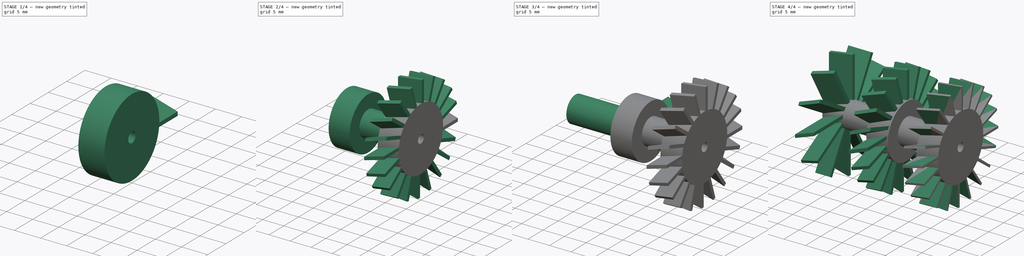
[diagram: build sequence overview — one tinted view per stage of 4, left to right]
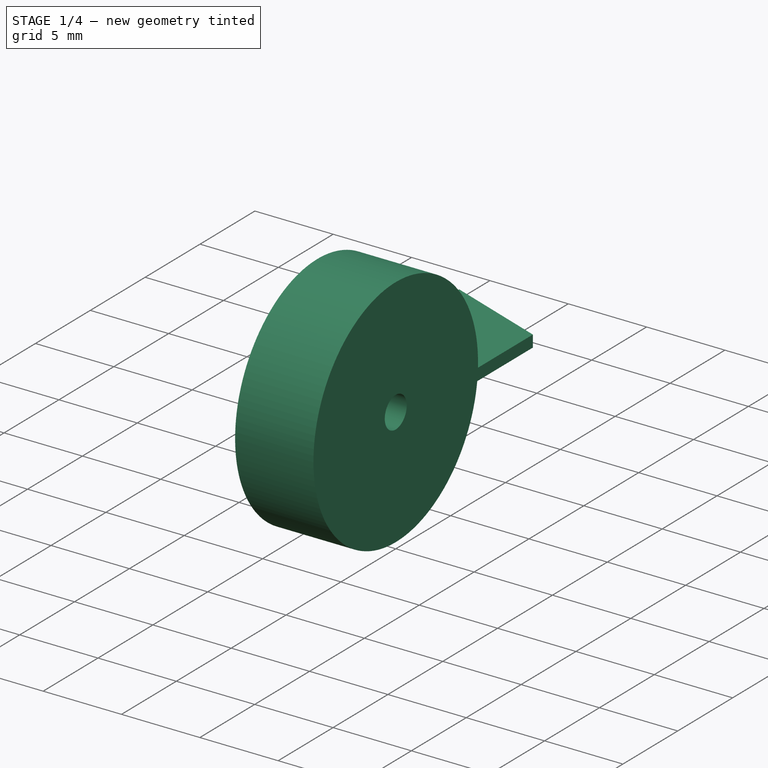
[diagram: stage 1 of 4 — iso view after this stage's code; geometry added in this stage tinted green]
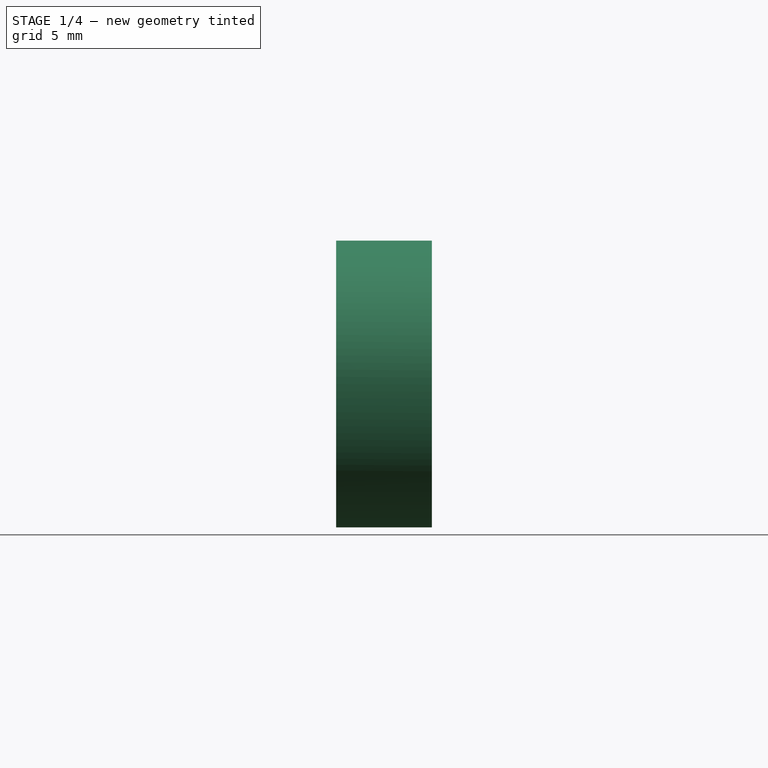
[diagram: stage 1 of 4 — front view after this stage's code; geometry added in this stage tinted green]
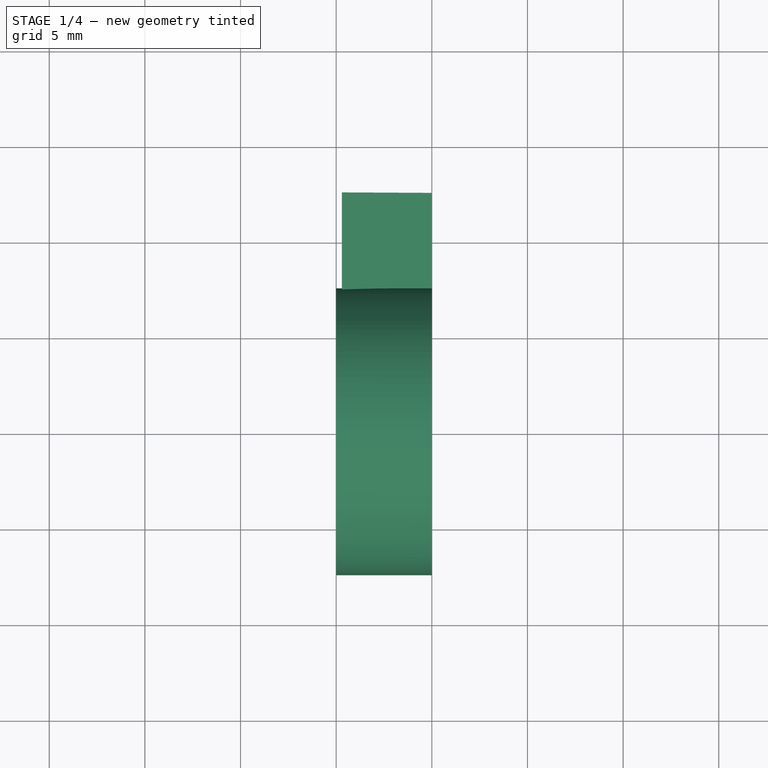
[diagram: stage 1 of 4 — top view after this stage's code; geometry added in this stage tinted green]
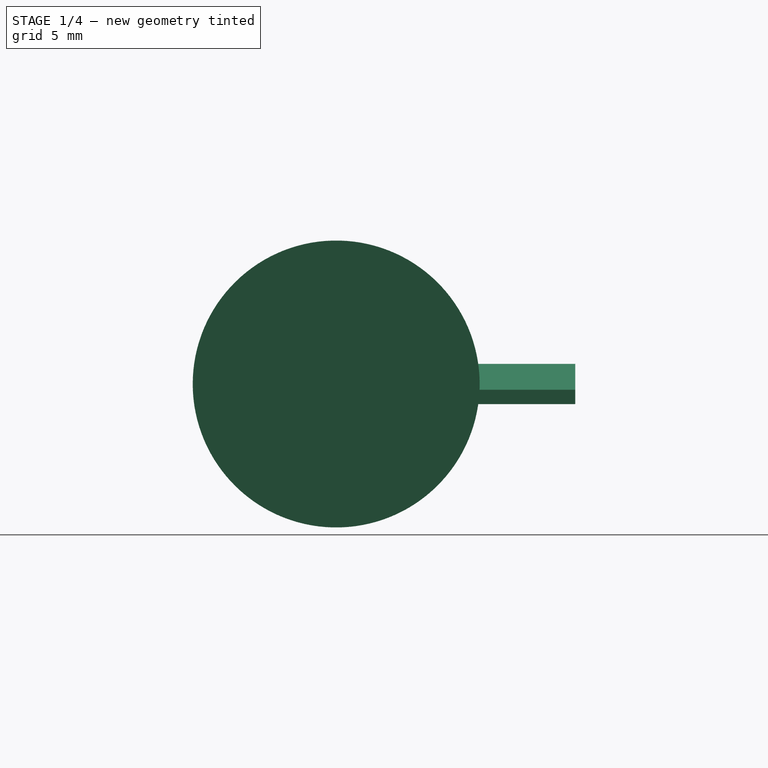
[diagram: stage 1 of 4 — right view after this stage's code; geometry added in this stage tinted green]
FCSTD DOCUMENT  (FreeCAD 0.19R24276 (Git))
Label: thicker_blades
License: All rights reserved
LicenseURL: http://en.wikipedia.org/wiki/All_rights_reserved
objects: Sketcher::SketchObject×8, PartDesign::Pad×7, PartDesign::Plane×3, PartDesign::PolarPattern×3, PartDesign::Pocket×1, PartDesign::Body×1
note: 31 computed .brp shape members not serialized (recipe doc carries the construction recipe); baked Part::Feature solids carry a one-line shape summary decoded from their .brp

FEATURE [Sketcher::SketchObject] Sketch
  FullyConstrained = true
  MapMode = 5
  Placement = pos=(0,0,0) rot=(0.57735,0.57735,0.57735;2.0944rad)
  Support = -> [YZ_Plane]
  sketch-geometry (1):
    g0: Circle CenterX=0 CenterY=0 CenterZ=0 NormalX=0 NormalY=0 NormalZ=1 AngleXU=0 Radius=7.5
  constraints (2):
    c: Coincident(g0,g-1)
    c: Diameter(g0) = 15
FEATURE [PartDesign::Pad] Pad
  Direction = (1,1,1)
  Length = 5
  Length2 = 100
  Placement = pos=(0,0,0) rot=(0.57735,0.57735,0.57735;2.0944rad)
  Profile = -> Sketch
  Type = 0
FEATURE [Sketcher::SketchObject] Sketch001
  FullyConstrained = false
  MapMode = 5
  Placement = pos=(5,-1.1e-15,1.1e-15) rot=(0.57735,0.57735,0.57735;2.0944rad)
  Support = -> [Pad]
  sketch-geometry (1):
    g0: Circle CenterX=0 CenterY=0 CenterZ=0 NormalX=0 NormalY=0 NormalZ=1 AngleXU=0 Radius=1
  constraints (1):
    c: Diameter(g0) = 2
FEATURE [PartDesign::Pocket] Pocket
  BaseFeature = -> Pad
  Length = 3
  Length2 = 100
  Placement = pos=(0,0,0) rot=(0.57735,0.57735,0.57735;2.0944rad)
  Profile = -> Sketch001
  Type = 0
FEATURE [PartDesign::Plane] DatumPlane
  Length = 60
  MapMode = 6
  Placement = pos=(0,7.5,-3.3e-15) rot=(0.57735,0.57735,0.57735;4.18879rad)
  ResizeMode = 0
  Support = -> [Pocket]
  Width = 60
FEATURE [Sketcher::SketchObject] Sketch002
  FullyConstrained = true
  MapMode = 5
  Placement = pos=(0,7.5,-3.3e-15) rot=(0.57735,0.57735,0.57735;4.18879rad)
  Support = -> [DatumPlane]
  sketch-geometry (4):
    g0: LineSegment StartX=1.05 StartY=0.3 StartZ=0 EndX=-0.3 EndY=5 EndZ=0
    g1: LineSegment StartX=-0.3 StartY=5 StartZ=0 EndX=-1.05 EndY=5 EndZ=0
    g2: LineSegment StartX=1.05 StartY=0.3 StartZ=0 EndX=0.3 EndY=0.3 EndZ=0
    g3: LineSegment StartX=-1.05 StartY=5 StartZ=0 EndX=0.3 EndY=0.3 EndZ=0
  constraints (12):
    c: Coincident(g1,g0)
    c: Coincident(g2,g0)
    c: Coincident(g3,g1)
    c: Coincident(g3,g2)
    c: Parallel(g0,g3)
    c: Equal(g2,g1)
    c: Horizontal(g1)
    c: DistanceX(g0,g-1) = 0.3
    c: DistanceX(g-1,g2) = 0.3
    c: DistanceX(g1,g0) = 0.75
    c: DistanceY(g-1,g2) = 0.3
    c: DistanceY(g-1,g0) = 5
FEATURE [PartDesign::Pad] Pad001
  BaseFeature = -> Pocket
  Direction = (1,1,1)
  Length = 10
  Length2 = 100
  Midplane = true
  Placement = pos=(0,0,0) rot=(0.57735,0.57735,0.57735;2.0944rad)
  Profile = -> Sketch002
  Type = 0
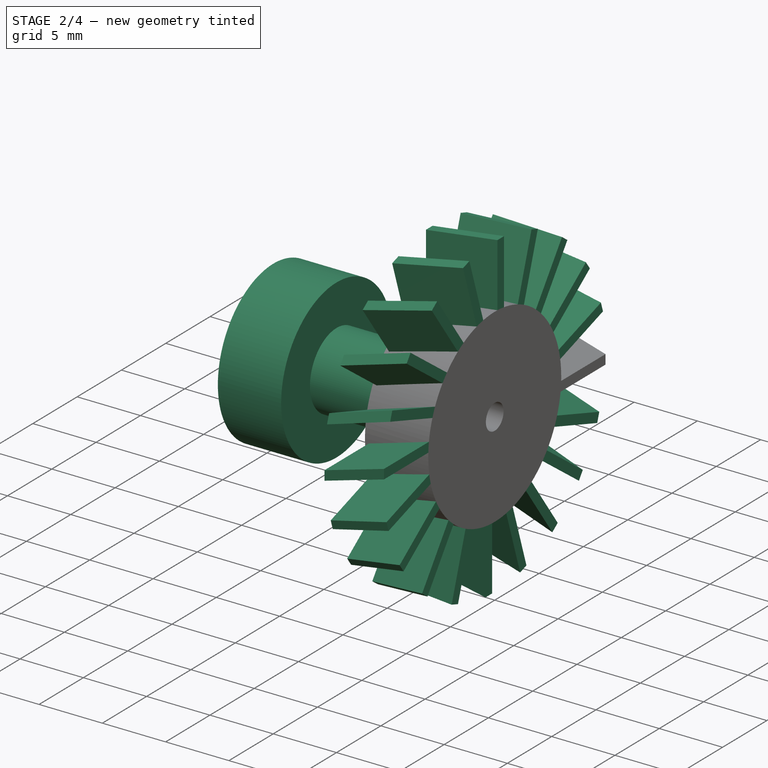
[diagram: stage 2 of 4 — iso view after this stage's code; geometry added in this stage tinted green]
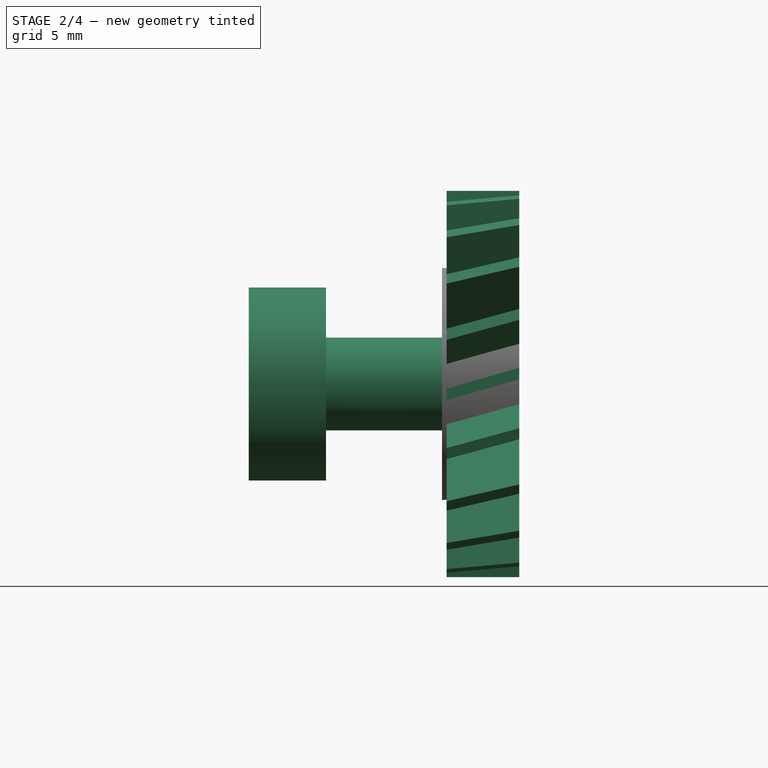
[diagram: stage 2 of 4 — front view after this stage's code; geometry added in this stage tinted green]
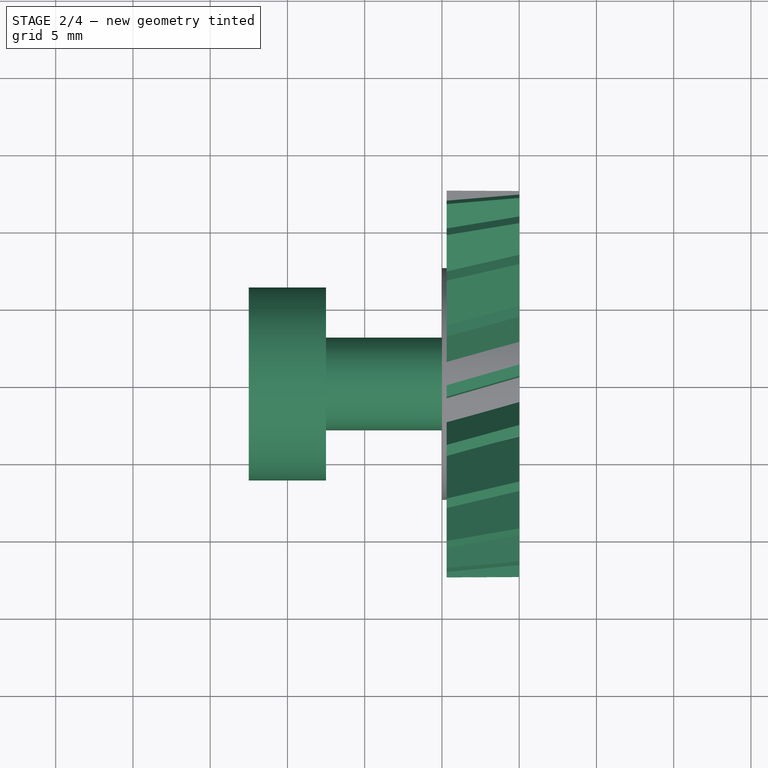
[diagram: stage 2 of 4 — top view after this stage's code; geometry added in this stage tinted green]
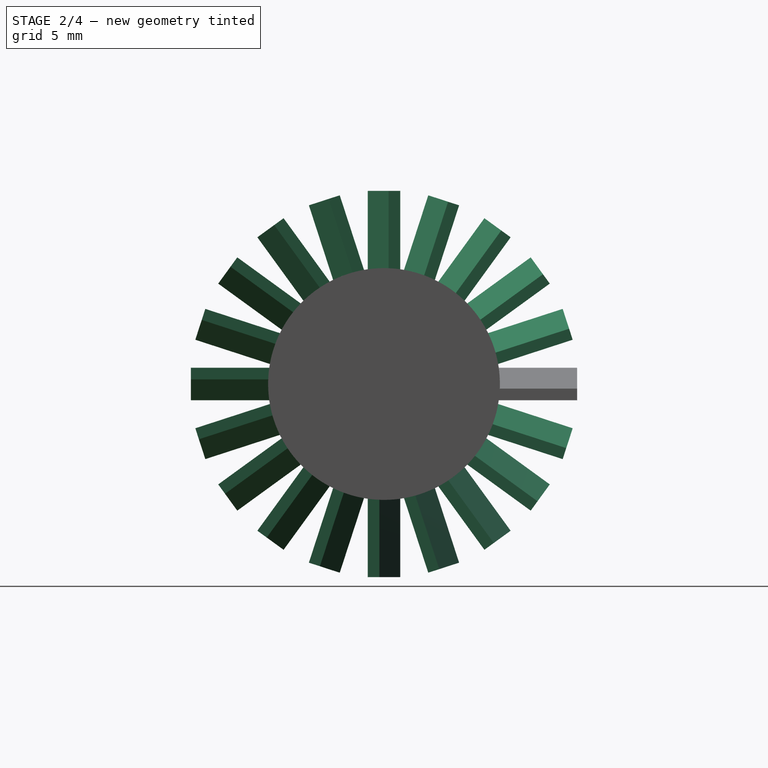
[diagram: stage 2 of 4 — right view after this stage's code; geometry added in this stage tinted green]
FEATURE [PartDesign::PolarPattern] PolarPattern
  Angle = 360
  Axis = -> X_Axis
  BaseFeature = -> Pad001
  Occurrences = 20
  Originals = -> [Pad001]
  Placement = pos=(0,0,0) rot=(0.57735,0.57735,0.57735;2.0944rad)
FEATURE [Sketcher::SketchObject] Sketch003
  FullyConstrained = true
  MapMode = 5
  Placement = pos=(0,0,0) rot=(0.57735,0.57735,-0.57735;4.18879rad)
  Support = -> [PolarPattern]
  sketch-geometry (1):
    g0: Circle CenterX=0 CenterY=0 CenterZ=0 NormalX=0 NormalY=0 NormalZ=1 AngleXU=0 Radius=3
  constraints (2):
    c: Coincident(g0,g-1)
    c: Radius(g0) = 3
FEATURE [PartDesign::Pad] Pad002
  BaseFeature = -> PolarPattern
  Direction = (1,1,1)
  Length = 7.5
  Length2 = 100
  Placement = pos=(0,0,0) rot=(0.57735,0.57735,0.57735;2.0944rad)
  Profile = -> Sketch003
  Type = 0
FEATURE [Sketcher::SketchObject] Sketch004
  FullyConstrained = true
  MapMode = 5
  Placement = pos=(-7.5,1.7e-15,-2.1e-15) rot=(0.57735,0.57735,-0.57735;4.18879rad)
  Support = -> [Pad002]
  sketch-geometry (1):
    g0: Circle CenterX=0 CenterY=0 CenterZ=0 NormalX=0 NormalY=0 NormalZ=1 AngleXU=0 Radius=6.25
  constraints (2):
    c: Coincident(g0,g-1)
    c: Radius(g0) = 6.25
FEATURE [PartDesign::Pad] Pad003
  BaseFeature = -> Pad002
  Direction = (1,1,1)
  Length = 5
  Length2 = 100
  Placement = pos=(0,0,0) rot=(0.57735,0.57735,0.57735;2.0944rad)
  Profile = -> Sketch004
  Type = 0
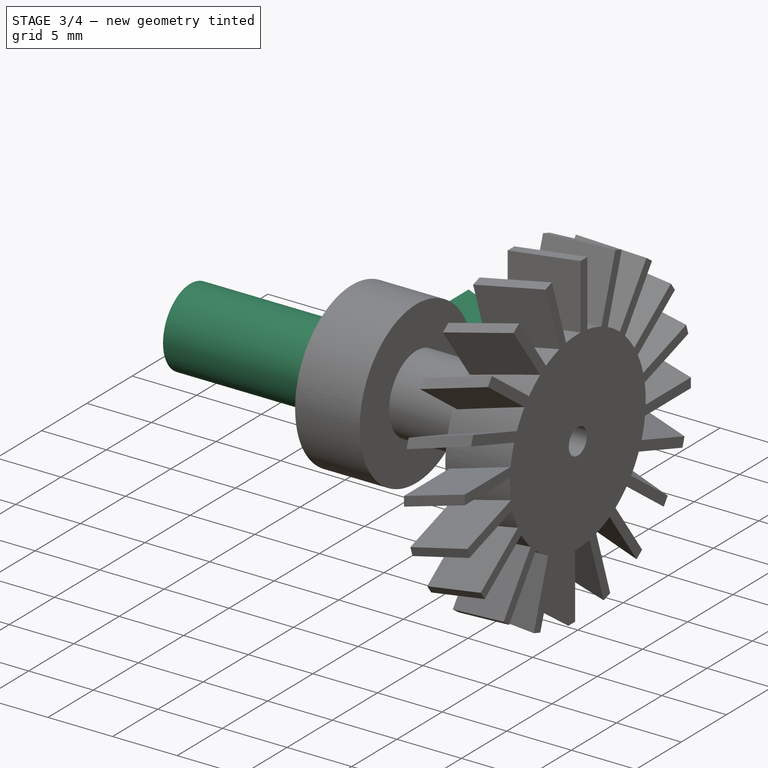
[diagram: stage 3 of 4 — iso view after this stage's code; geometry added in this stage tinted green]
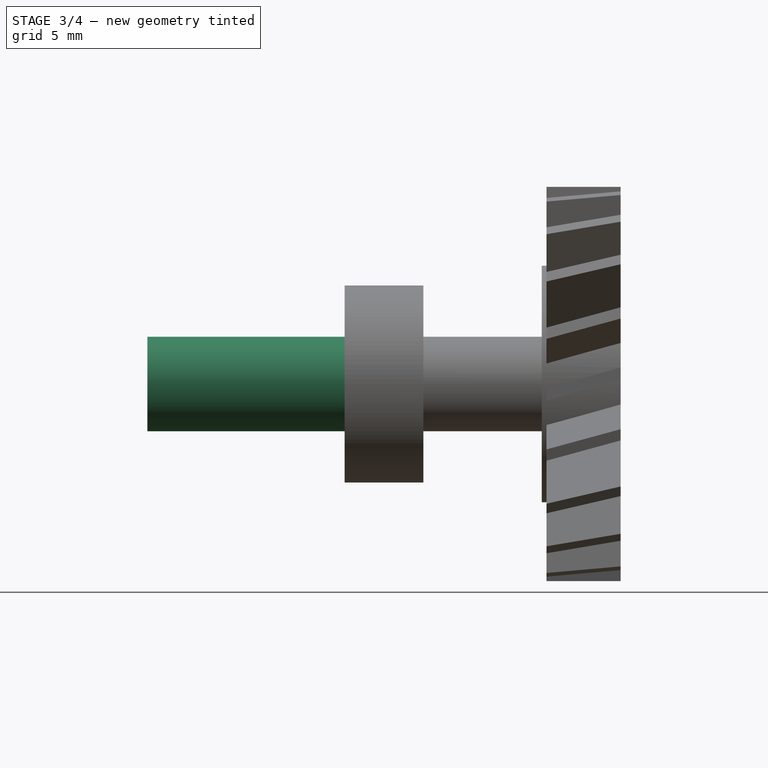
[diagram: stage 3 of 4 — front view after this stage's code; geometry added in this stage tinted green]
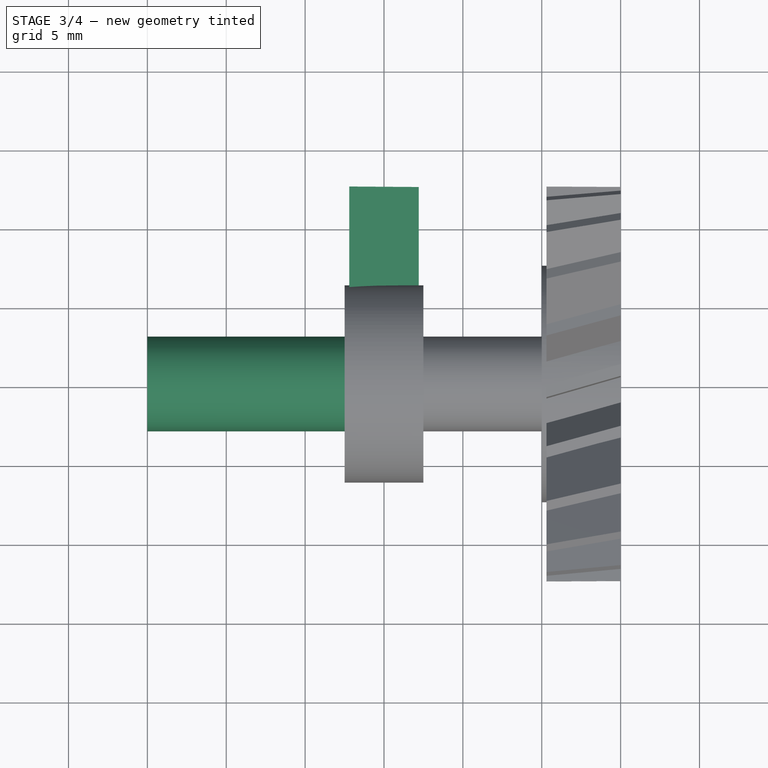
[diagram: stage 3 of 4 — top view after this stage's code; geometry added in this stage tinted green]
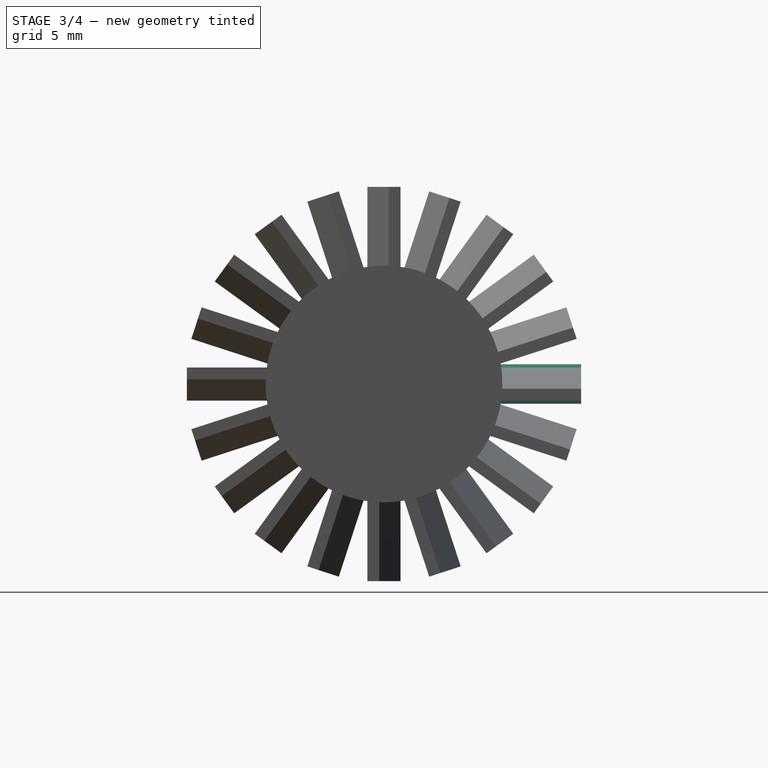
[diagram: stage 3 of 4 — right view after this stage's code; geometry added in this stage tinted green]
FEATURE [Sketcher::SketchObject] Sketch005
  FullyConstrained = true
  MapMode = 5
  Placement = pos=(-12.5,3e-15,-3.8e-15) rot=(0.57735,0.57735,-0.57735;4.18879rad)
  Support = -> [Pad003]
  sketch-geometry (1):
    g0: Circle CenterX=0 CenterY=0 CenterZ=0 NormalX=0 NormalY=0 NormalZ=1 AngleXU=0 Radius=3
  constraints (2):
    c: Coincident(g0,g-1)
    c: Radius(g0) = 3
FEATURE [PartDesign::Pad] Pad004
  BaseFeature = -> Pad003
  Direction = (1,1,1)
  Length = 12.5
  Length2 = 100
  Placement = pos=(0,0,0) rot=(0.57735,0.57735,0.57735;2.0944rad)
  Profile = -> Sketch005
  Type = 0
FEATURE [PartDesign::Plane] DatumPlane001
  Length = 60
  MapMode = 6
  Placement = pos=(-12.5,6.25,-4.3e-15) rot=(-0.57735,0.57735,0.57735;2.0944rad)
  ResizeMode = 0
  Support = -> [Pad004]
  Width = 60
FEATURE [Sketcher::SketchObject] Sketch006
  FullyConstrained = true
  MapMode = 5
  Placement = pos=(-12.5,6.25,-4.3e-15) rot=(-0.57735,0.57735,0.57735;2.0944rad)
  Support = -> [DatumPlane001]
  sketch-geometry (4):
    g0: LineSegment StartX=0.5 StartY=-4.7 StartZ=0 EndX=-1.25 EndY=-0.3 EndZ=0
    g1: LineSegment StartX=0.5 StartY=-4.7 StartZ=0 EndX=1.25 EndY=-4.7 EndZ=0
    g2: LineSegment StartX=-1.25 StartY=-0.3 StartZ=0 EndX=-0.5 EndY=-0.3 EndZ=0
    g3: LineSegment StartX=-0.5 StartY=-0.3 StartZ=0 EndX=1.25 EndY=-4.7 EndZ=0
  constraints (12):
    c: Coincident(g1,g0)
    c: Horizontal(g1)
    c: Coincident(g2,g0)
    c: Horizontal(g2)
    c: Coincident(g3,g2)
    c: Coincident(g3,g1)
    c: Parallel(g3,g0)
    c: DistanceY(g0,g-1) = 4.7
    c: DistanceY(g2,g-1) = 0.3
    c: DistanceX(g-1,g0) = 0.5
    c: DistanceX(g2,g-1) = 0.5
    c: DistanceX(g1,g1) = 0.75
FEATURE [PartDesign::Pad] Pad005
  BaseFeature = -> Pad004
  Direction = (1,1,1)
  Length = 12.5
  Length2 = 100
  Midplane = true
  Placement = pos=(0,0,0) rot=(0.57735,0.57735,0.57735;2.0944rad)
  Profile = -> Sketch006
  Type = 0
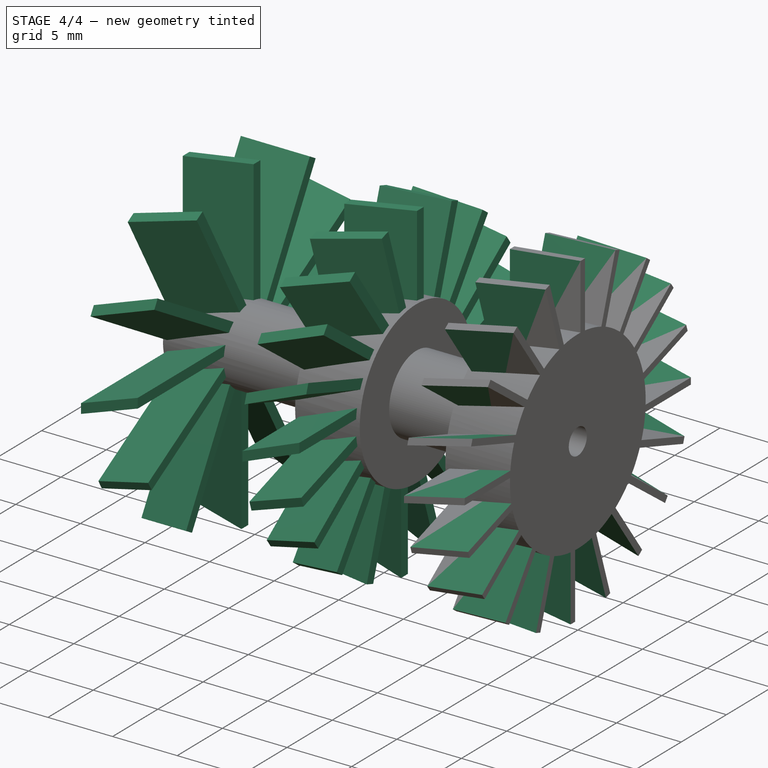
[diagram: stage 4 of 4 — iso view after this stage's code; geometry added in this stage tinted green]
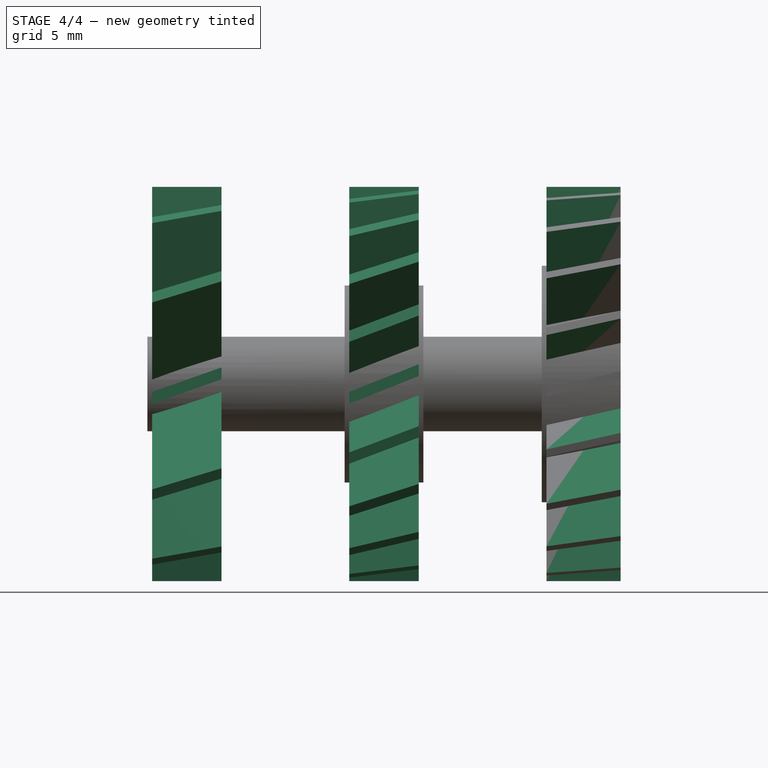
[diagram: stage 4 of 4 — front view after this stage's code; geometry added in this stage tinted green]
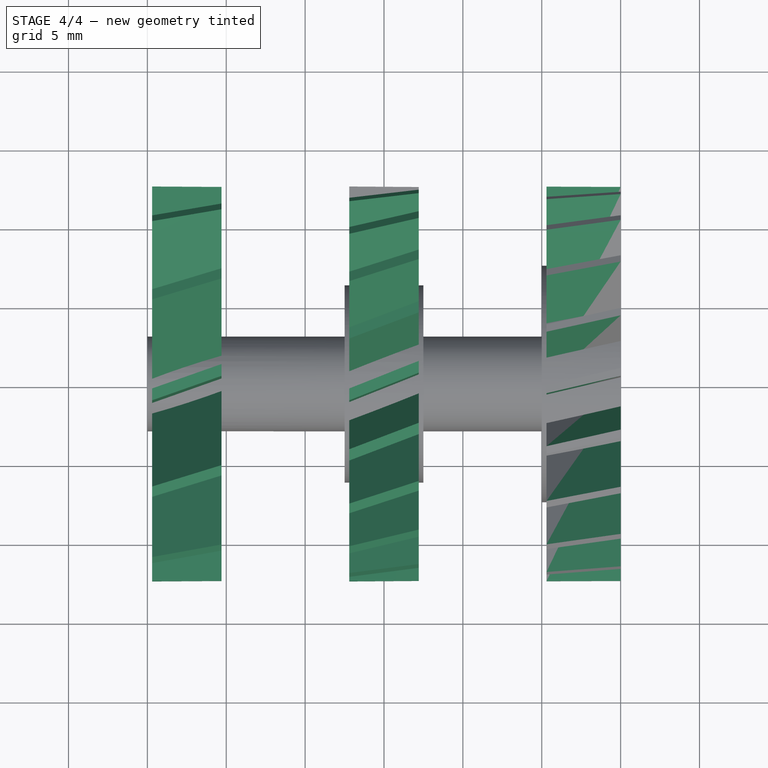
[diagram: stage 4 of 4 — top view after this stage's code; geometry added in this stage tinted green]
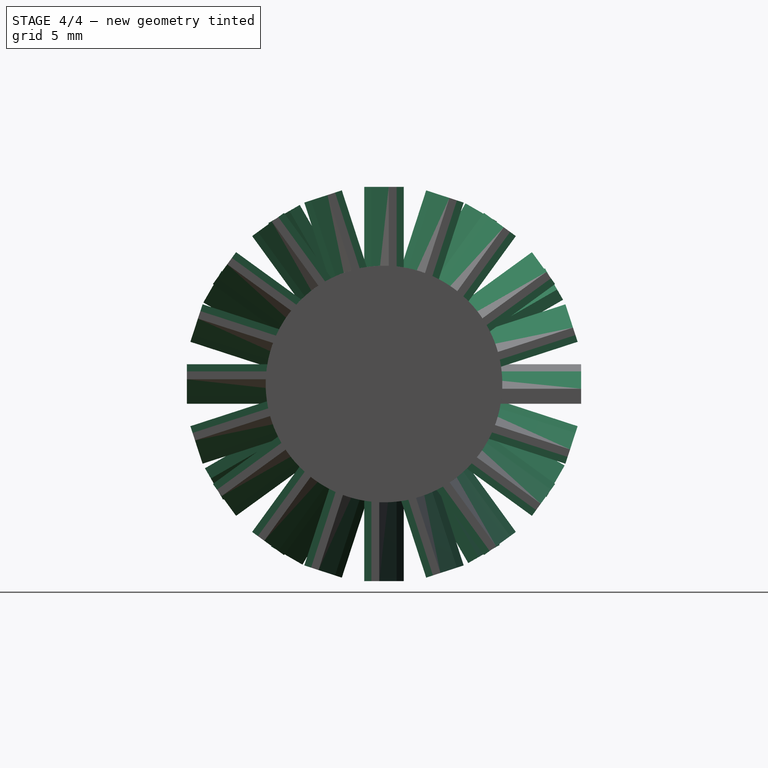
[diagram: stage 4 of 4 — right view after this stage's code; geometry added in this stage tinted green]
FEATURE [PartDesign::PolarPattern] PolarPattern001
  Angle = 360
  Axis = -> X_Axis
  BaseFeature = -> Pad005
  Occurrences = 15
  Originals = -> [Pad005]
  Placement = pos=(0,0,0) rot=(0.57735,0.57735,0.57735;2.0944rad)
FEATURE [PartDesign::Plane] DatumPlane002
  Length = 60
  MapMode = 6
  Placement = pos=(5,3,5.6e-15) rot=(0,1,0;1.5708rad)
  ResizeMode = 0
  Support = -> [PolarPattern001]
  Width = 60
FEATURE [Sketcher::SketchObject] Sketch007
  FullyConstrained = true
  MapMode = 5
  Placement = pos=(5,-7.38714,-1.29619) rot=(0,1,0;1.5708rad)
  Support = -> [DatumPlane002]
  sketch-geometry (4):
    g0: LineSegment StartX=1.05 StartY=-4.7 StartZ=0 EndX=-0.5 EndY=-0.3 EndZ=0
    g1: LineSegment StartX=-0.5 StartY=-0.3 StartZ=0 EndX=-1.25 EndY=-0.3 EndZ=0
    g2: LineSegment StartX=1.05 StartY=-4.7 StartZ=0 EndX=0.3 EndY=-4.7 EndZ=0
    g3: LineSegment StartX=0.3 StartY=-4.7 StartZ=0 EndX=-1.25 EndY=-0.3 EndZ=0
  constraints (12):
    c: Coincident(g1,g0)
    c: Coincident(g2,g0)
    c: Coincident(g3,g2)
    c: Coincident(g3,g1)
    c: Horizontal(g2)
    c: Horizontal(g1)
    c: Parallel(g0,g3)
    c: DistanceX(g0,g-1) = 0.5
    c: DistanceY(g2,g-1) = 4.7
    c: DistanceY(g1,g-1) = 0.3
    c: DistanceX(g2,g2) = 0.75
    c: DistanceX(g-1,g2) = 0.3
FEATURE [PartDesign::Pad] Pad006
  BaseFeature = -> PolarPattern001
  Direction = (0,1,0)
  Length = 9.5
  Length2 = 1
  Midplane = true
  Offset = 2
  Placement = pos=(0,0,0) rot=(0.57735,0.57735,0.57735;2.0944rad)
  Profile = -> Sketch007
  Type = 4
  UseCustomVector = true
FEATURE [PartDesign::PolarPattern] PolarPattern002
  Angle = 360
  Axis = -> X_Axis
  BaseFeature = -> Pad006
  Occurrences = 12
  Originals = -> [Pad006]
  Placement = pos=(0,0,0) rot=(0.57735,0.57735,0.57735;2.0944rad)
FEATURE [PartDesign::Body] Body
  Group = -> [Sketch,Pad,Sketch001,Pocket,DatumPlane,Sketch002,Pad001,PolarPattern,Sketch003,Pad002,Sketch004,Pad003,Sketch005,Pad004,DatumPlane001,Sketch006,Pad005,PolarPattern001,DatumPlane002,Sketch007,Pad006,PolarPattern002]
  Origin = -> Origin
  Tip = -> PolarPattern002
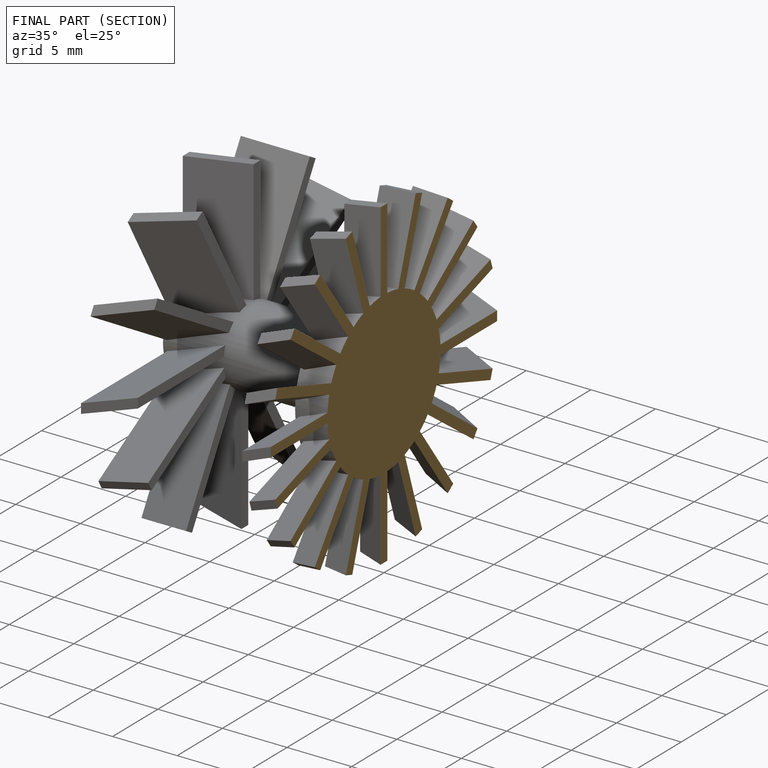
[diagram: finished part — half-section view (interior)]
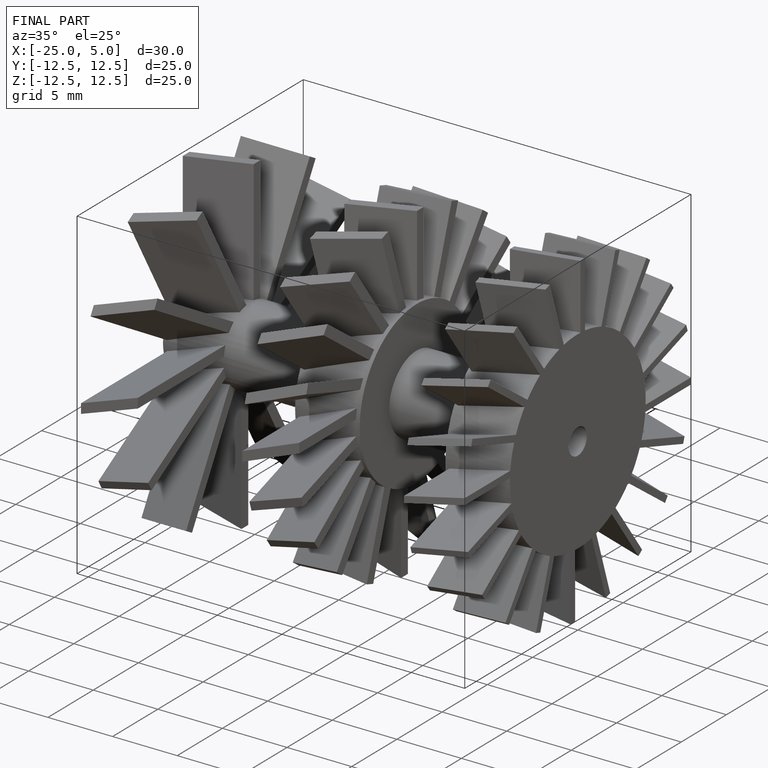
[diagram: finished part — iso view with bounding-box wireframe]
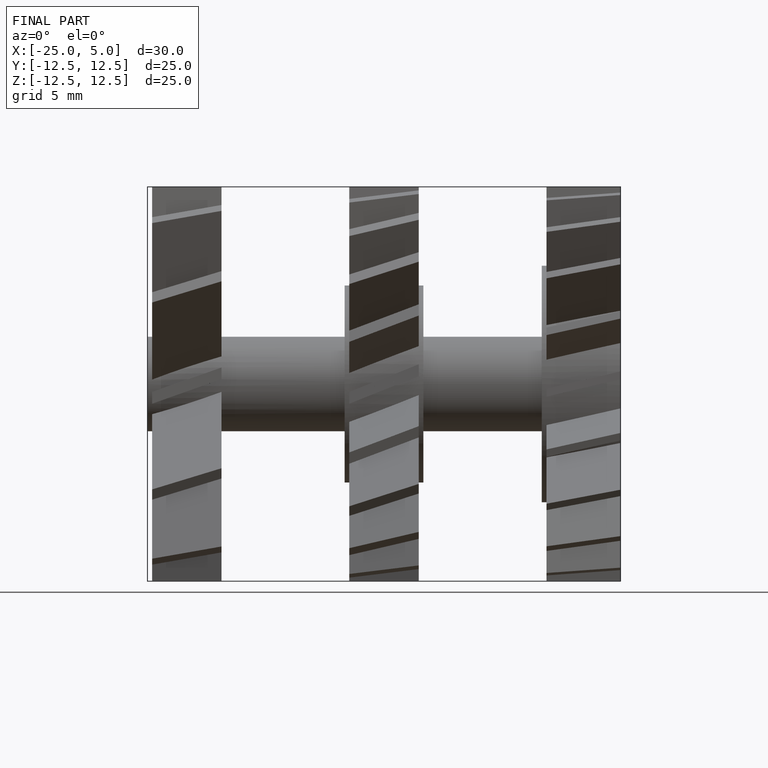
[diagram: finished part — front view with bounding-box wireframe]
